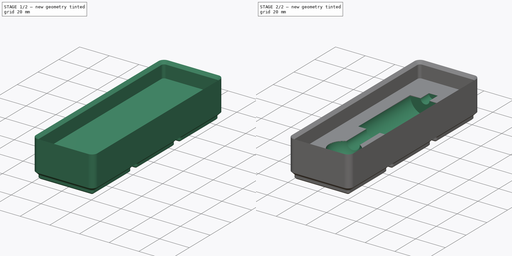
[diagram: build sequence overview — one tinted view per stage of 2, left to right]
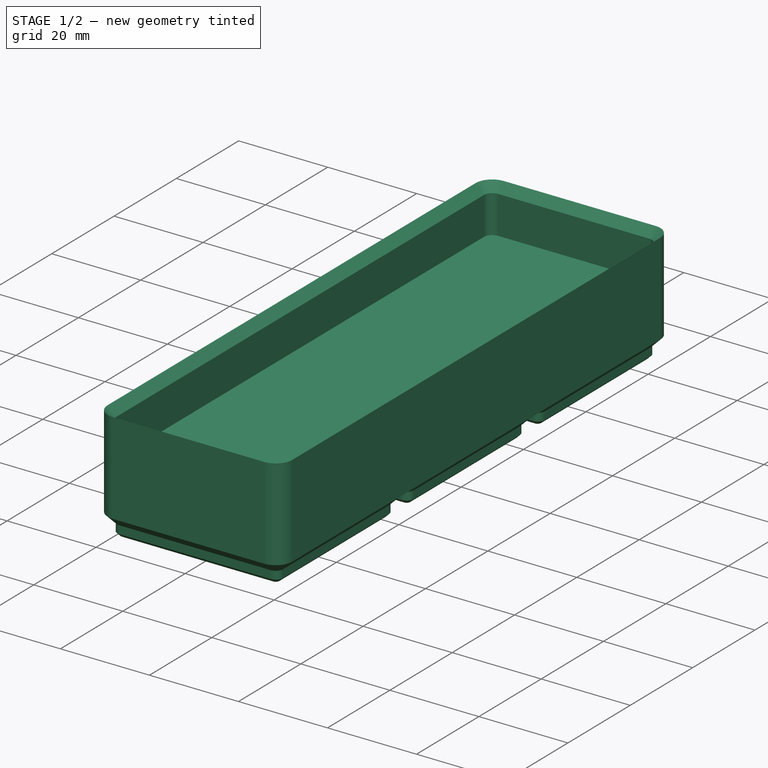
[diagram: stage 1 of 2 — iso view after this stage's code; geometry added in this stage tinted green]
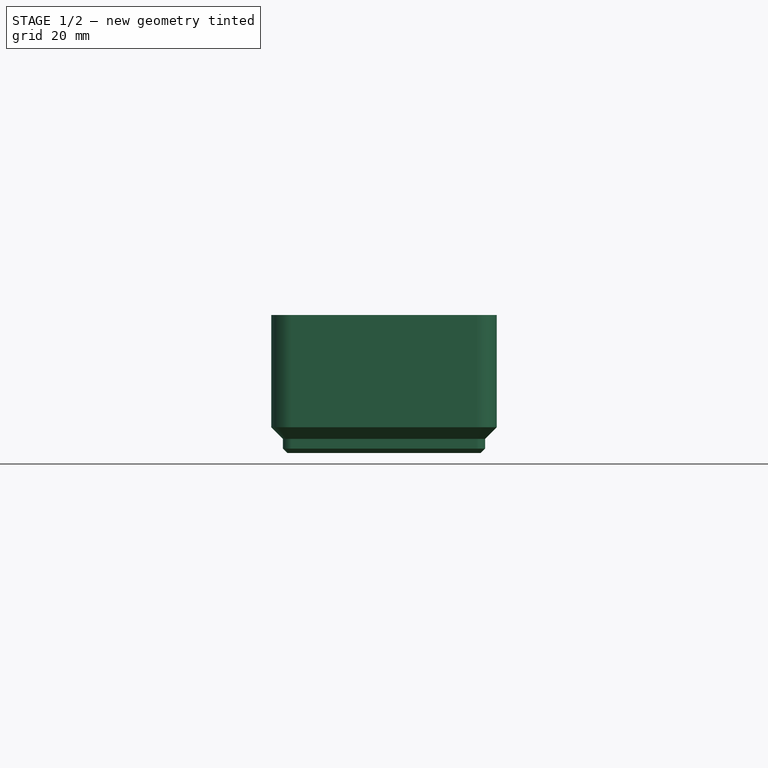
[diagram: stage 1 of 2 — front view after this stage's code; geometry added in this stage tinted green]
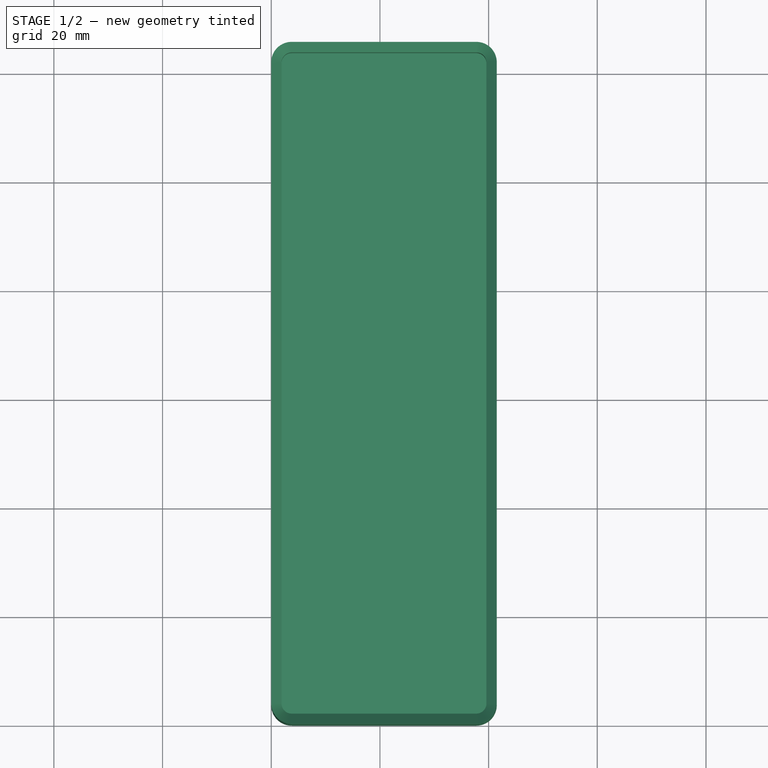
[diagram: stage 1 of 2 — top view after this stage's code; geometry added in this stage tinted green]
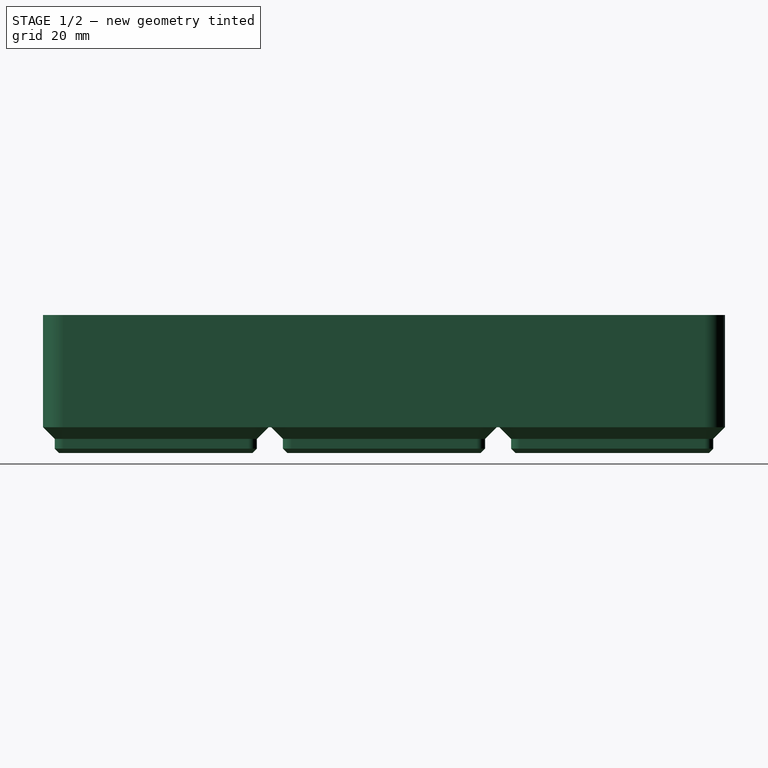
[diagram: stage 1 of 2 — right view after this stage's code; geometry added in this stage tinted green]
FCSTD DOCUMENT  (FreeCAD 1.0R39319 (Git))
Label: gridfinity_16mm_router_tray
License: All rights reserved
LicenseURL: https://en.wikipedia.org/wiki/All_rights_reserved
objects: Part::Feature×1, PartDesign::FeatureBase×1, PartDesign::Pocket×1, Sketcher::SketchObject×1, PartDesign::Groove×1, PartDesign::Body×1
note: 12 computed .brp shape members not serialized (recipe doc carries the construction recipe); baked Part::Feature solids carry a one-line shape summary decoded from their .brp

FEATURE [Part::Feature] Part__Feature  label="Open CASCADE STEP translator 7.7 353"
  shape: bbox 41.5 x 125.5 x 25.4 mm, 118 faces (baked)
FEATURE [PartDesign::FeatureBase] BaseFeature
  BaseFeature = -> Part__Feature
  Suppressed = false
FEATURE [PartDesign::Pocket] Pocket
  BaseFeature = -> BaseFeature
  Direction = (0,0,-1)
  Length = 6
  Length2 = 5
  Profile = -> BaseFeature [Face118]
  Refine = true
  Suppressed = false
  Type = 0
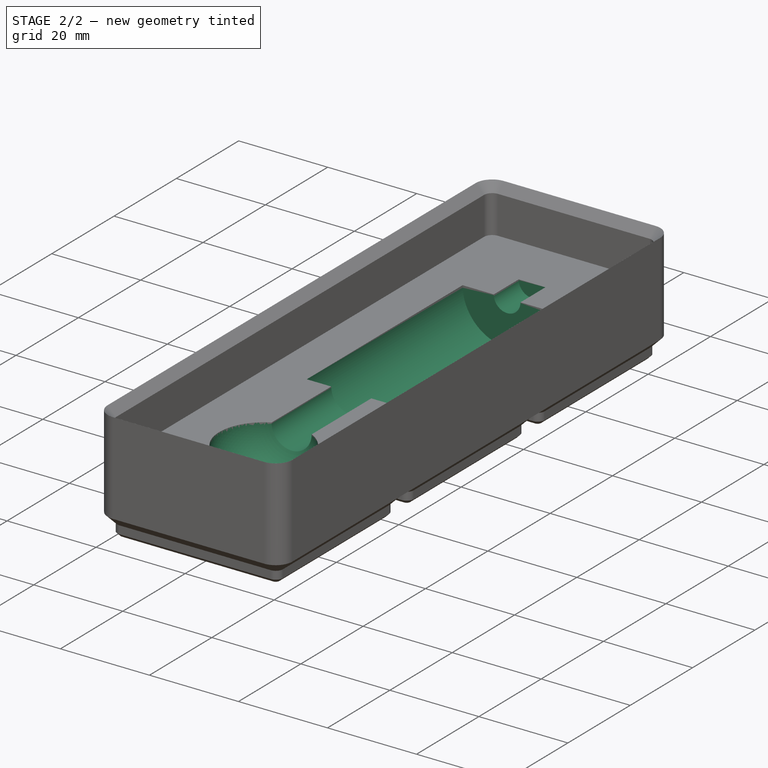
[diagram: stage 2 of 2 — iso view after this stage's code; geometry added in this stage tinted green]
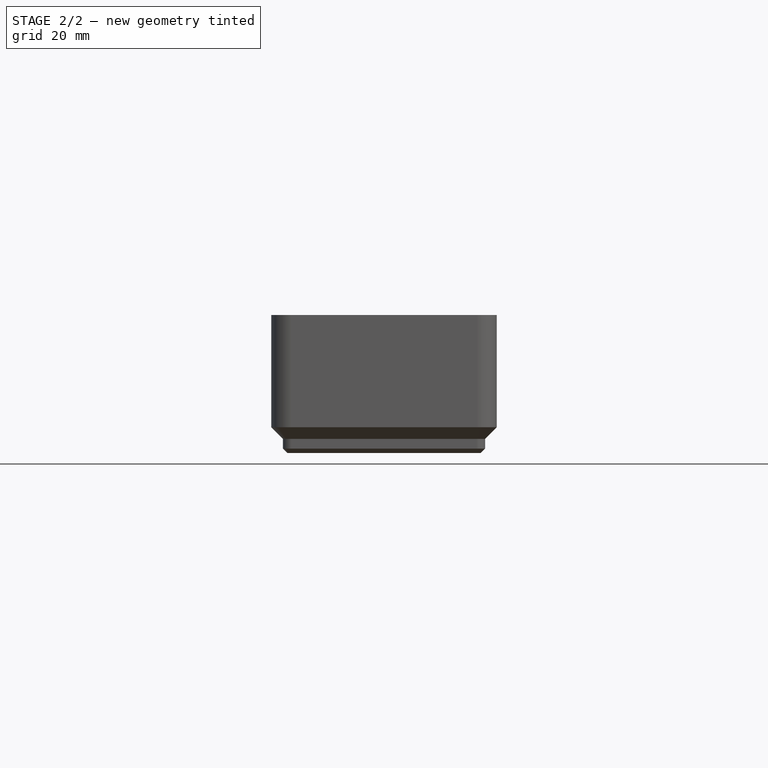
[diagram: stage 2 of 2 — front view after this stage's code; geometry added in this stage tinted green]
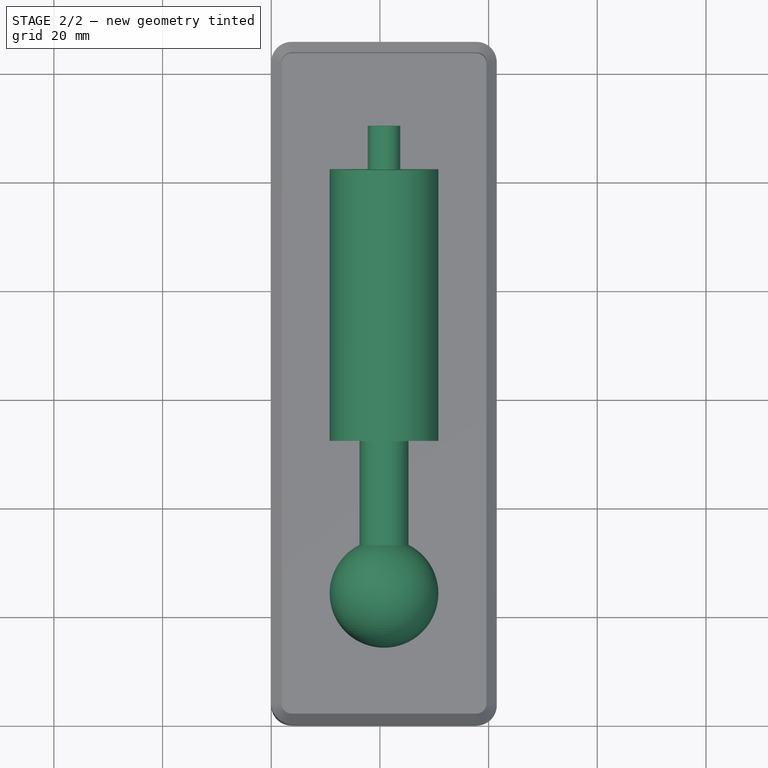
[diagram: stage 2 of 2 — top view after this stage's code; geometry added in this stage tinted green]
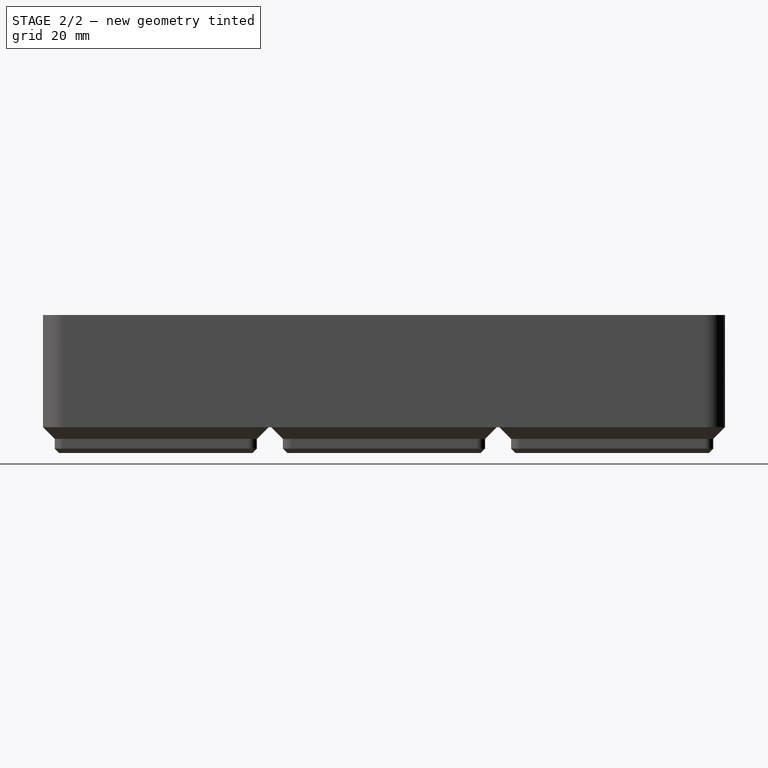
[diagram: stage 2 of 2 — right view after this stage's code; geometry added in this stage tinted green]
FEATURE [Sketcher::SketchObject] Sketch
  ArcFitTolerance = 1e-06
  AttachmentSupport = -> [Pocket]
  ExternalGeometry = -> [Pocket]
  FullyConstrained = true
  MakeInternals = false
  MapMode = 5
  Placement = pos=(0,0,15) rot=(0,0,1;0rad)
  expr: Constraints[22] = 82 - 4 - 32 + 4
  sketch-geometry (13):
    g0: LineSegment [constr] StartX=20.75 StartY=123.6 StartZ=0 EndX=20.75 EndY=1.9 EndZ=0
    g1: LineSegment StartX=20.75 StartY=110.25 StartZ=0 EndX=23.75 EndY=110.25 EndZ=0
    g2: LineSegment StartX=23.75 StartY=110.25 StartZ=0 EndX=23.75 EndY=102.25 EndZ=0
    g3: LineSegment StartX=23.75 StartY=102.25 StartZ=0 EndX=30.75 EndY=102.25 EndZ=0
    g4: LineSegment StartX=30.75 StartY=102.25 StartZ=0 EndX=30.75 EndY=52.25 EndZ=0
    g5: LineSegment StartX=30.75 StartY=52.25 StartZ=0 EndX=25.25 EndY=52.25 EndZ=0
    g6: LineSegment StartX=25.25 StartY=52.25 StartZ=0 EndX=25.25 EndY=33.1106 EndZ=0
    g7: LineSegment [constr] StartX=25.25 StartY=15.25 StartZ=0 EndX=20.75 EndY=15.25 EndZ=0
    g8: LineSegment StartX=20.75 StartY=15.25 StartZ=0 EndX=20.75 EndY=110.25 EndZ=0
    g9: GeomPoint X=20.75 Y=62.75 Z=0
    g10: ArcOfCircle CenterX=20.75 CenterY=24.1803 CenterZ=0 NormalX=0 NormalY=0 NormalZ=1 AngleXU=0 Radius=10 StartAngle=4.71239 EndAngle=7.38722
    g11: LineSegment StartX=20.75 StartY=15.25 StartZ=0 EndX=20.75 EndY=14.1803 EndZ=0
    g12: LineSegment [constr] StartX=25.25 StartY=33.1106 StartZ=0 EndX=25.25 EndY=15.25 EndZ=0
  constraints (36):
    c: Symmetric(g-3,g-3,g0)
    c: Symmetric(g-4,g-4,g0)
    c: PointOnObject(g1,g0)
    c: Horizontal(g1)
    c: Coincident(g1,g2)
    c: Vertical(g2)
    c: Coincident(g2,g3)
    c: Horizontal(g3)
    c: Coincident(g3,g4)
    c: Vertical(g4)
    c: Coincident(g4,g5)
    c: Horizontal(g5)
    c: Coincident(g5,g6)
    c: Vertical(g6)
    c: Horizontal(g7)
    c: Coincident(g7,g8)
    c: Coincident(g8,g1)
    c: DistanceX(g1,g1) = 3
    c: DistanceX(g7,g7) = 4.5
    c: DistanceX(g1,g3) = 10
    c: DistanceY(g2,g2) = 8
    c: DistanceY(g7,g6) = 37
    c: DistanceY(g4,g4) = 50
    c: Symmetric(g8,g8,g9)
    c: Symmetric(g0,g0,g9)
    c: PointOnObject(g10,g8)
    c: PointOnObject(g7,g10)
    c: Diameter(g10) = 20
    c: Coincident(g11,g7)
    c: PointOnObject(g11,g10)
    c: Vertical(g11)
    c: PointOnObject(g10,g0)
    c: Coincident(g6,g10)
    c: Coincident(g12,g6)
    c: Coincident(g12,g7)
    c: Vertical(g12)
FEATURE [PartDesign::Groove] Groove
  Angle = 360
  Angle2 = 60
  Axis = (0,-121.7,0)
  Base = (20.75,123.6,15)
  BaseFeature = -> Pocket
  Profile = -> Sketch
  ReferenceAxis = -> Sketch [Axis]
  Refine = true
  Reversed = true
  Suppressed = false
  Type = 0
FEATURE [PartDesign::Body] Body
  AllowCompound = false
  BaseFeature = -> Part__Feature
  Group = -> [BaseFeature,Pocket,Sketch,Groove]
  Origin = -> Origin
  Tip = -> Groove
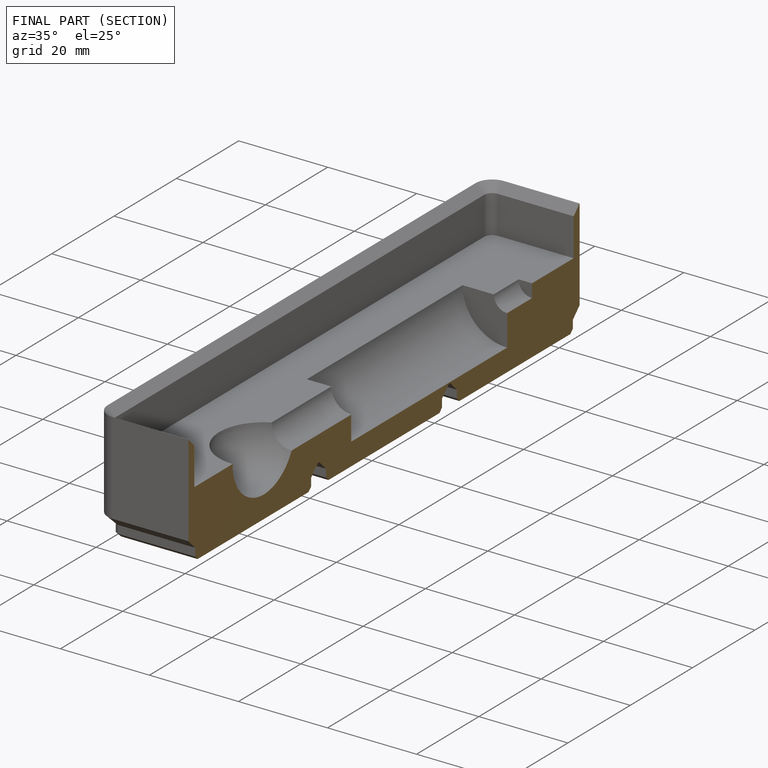
[diagram: finished part — half-section view (interior)]
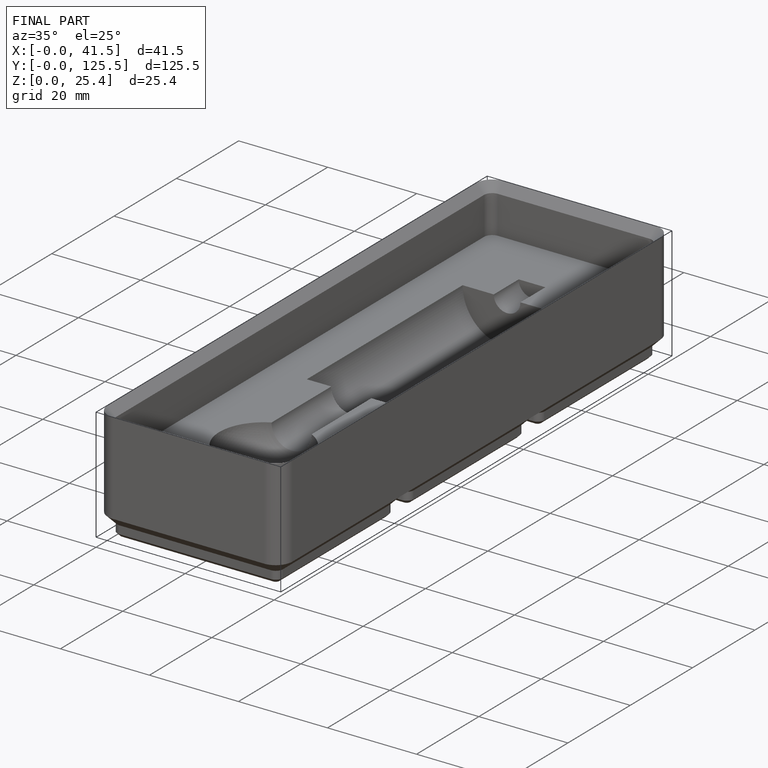
[diagram: finished part — iso view with bounding-box wireframe]
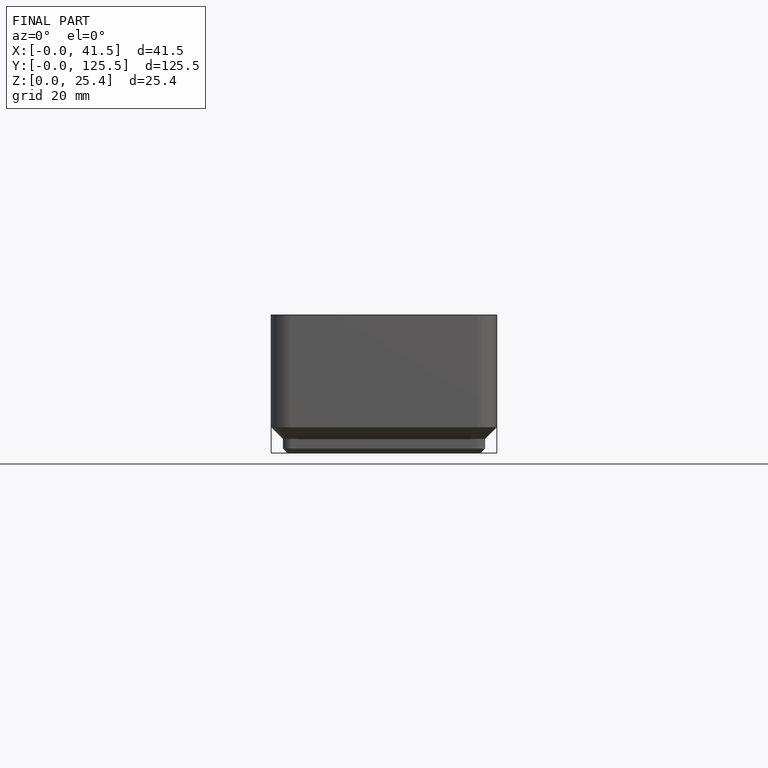
[diagram: finished part — front view with bounding-box wireframe]
